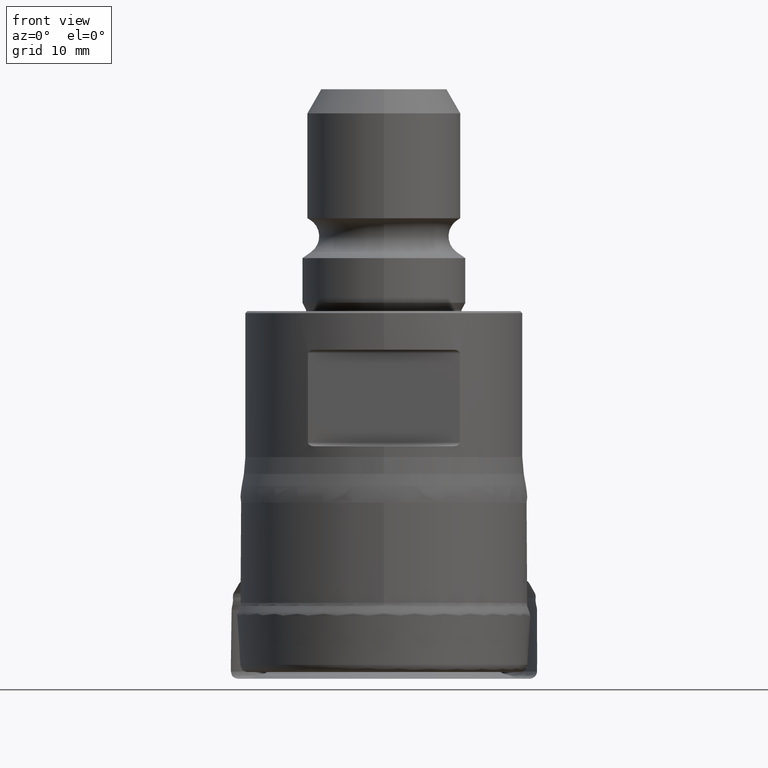
[diagram: clean part render]
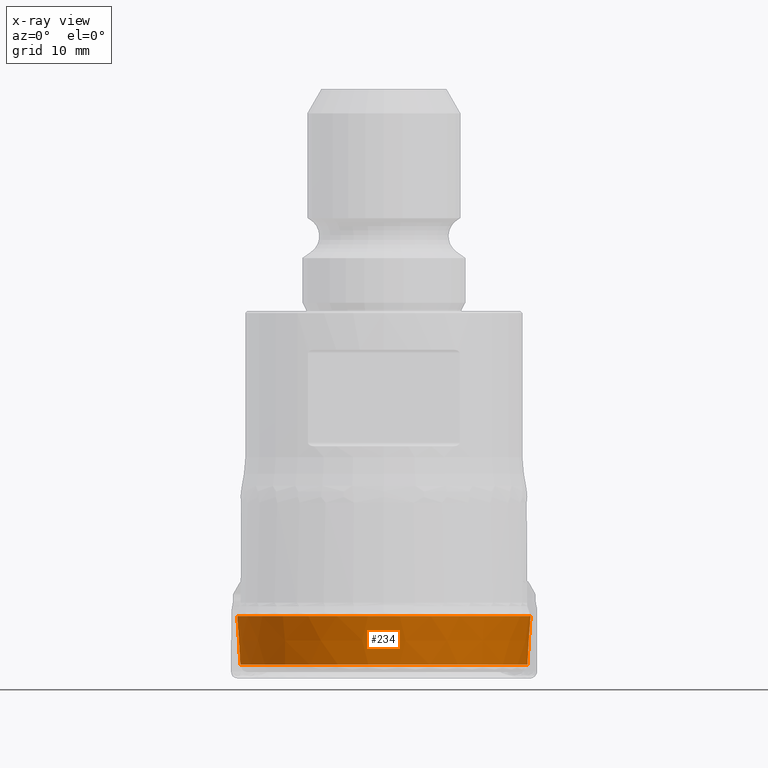
[diagram: x-ray — body ghosted, one internal face saturated and labeled with its STEP entity id]
A machine part, front view, then the same camera in x-ray: the body is ghosted and one INTERNAL B-rep face — a face not visible from any outside direction — is saturated and labeled: STEP entity #234.
In plain terms, the highlighted conical surface has half-angle 3.674 deg.
Its self-contained STEP definition (entity closure, byte-faithful):
#219=CONICAL_SURFACE('',#975,15.2387195110856,3.67411348917173);
#234=ADVANCED_FACE('',(#312,#313),#219,.T.);
#312=FACE_BOUND('',#426,.T.);
#313=FACE_BOUND('',#427,.T.);
#426=EDGE_LOOP('',(#548));
#427=EDGE_LOOP('',(#549));
#548=ORIENTED_EDGE('',*,*,#779,.T.);
#549=ORIENTED_EDGE('',*,*,#780,.T.);
#706=VERTEX_POINT('',#1556);
#707=VERTEX_POINT('',#1558);
#779=EDGE_CURVE('',#706,#706,#858,.T.);
#780=EDGE_CURVE('',#707,#707,#859,.T.);
#858=CIRCLE('',#973,15.2252889409451);
#859=CIRCLE('',#974,14.9015178259869);
#973=AXIS2_PLACEMENT_3D('',#1555,#1081,#1082);
#974=AXIS2_PLACEMENT_3D('',#1557,#1083,#1084);
#975=AXIS2_PLACEMENT_3D('',#1559,#1085,#1086);
#1081=DIRECTION('',(0.,-1.17145536458252E-15,-1.));
#1082=DIRECTION('',(0.,1.,-1.19633831373619E-15));
#1083=DIRECTION('',(0.,1.17145536458252E-15,1.));
#1084=DIRECTION('',(0.,1.,-1.1786769240134E-15));
#1085=DIRECTION('',(0.,1.17145536458252E-15,1.));
#1086=DIRECTION('',(0.,-1.,-9.38843329279969E-16));
#1555=CARTESIAN_POINT('',(0.,7.6037349649409E-15,6.49084480282411));
#1556=CARTESIAN_POINT('',(0.,15.2252889409451,6.49084480282409));
#1557=CARTESIAN_POINT('',(0.,1.69712821088757E-15,1.44873484914415));
#1558=CARTESIAN_POINT('',(0.,14.9015178259869,1.44873484914413));
#1559=CARTESIAN_POINT('',(0.,7.84875094270291E-15,6.7));